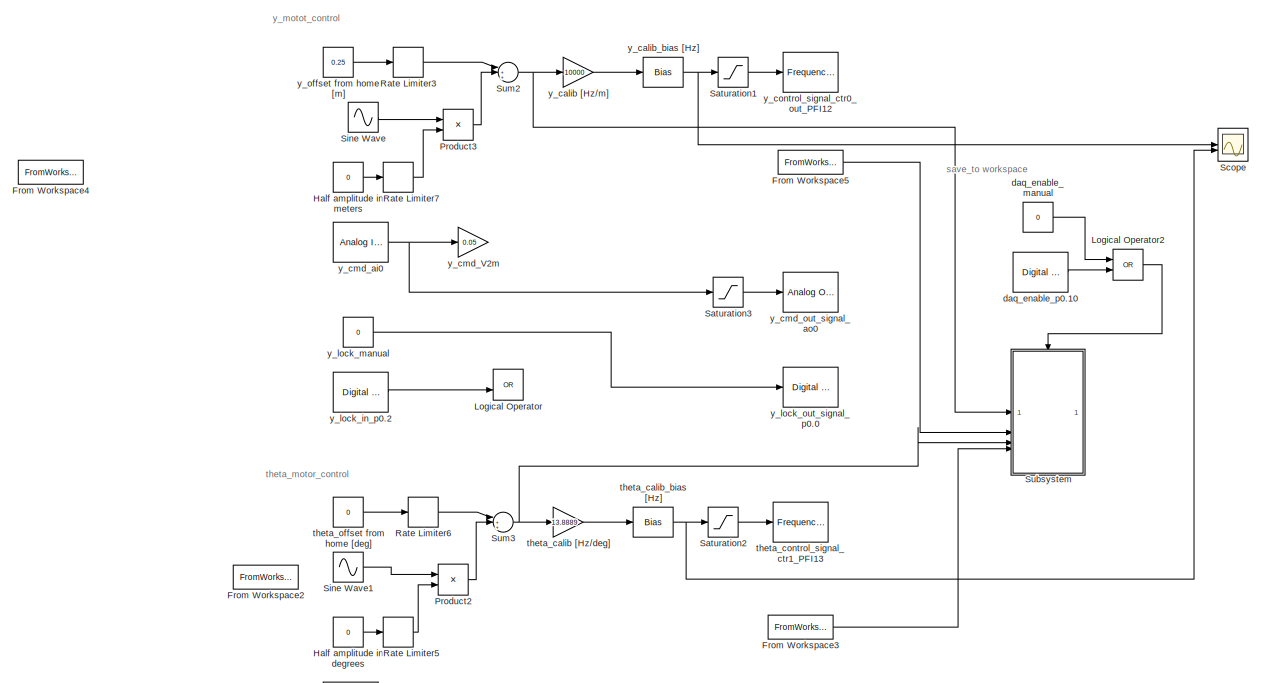
[diagram: root canvas - part 1/3, left side, full height]
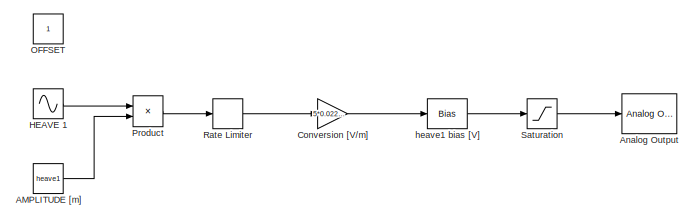
[diagram: root canvas - part 2/3, top right region]
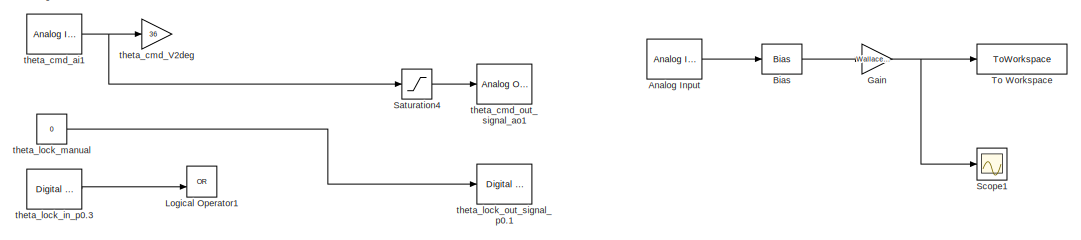
[diagram: root canvas - part 3/3, bottom center region]
MODEL slx_7e02fa98f4b2
KIND model
CONFIG AbsTol = auto
CONFIG EnableMultiTasking = off
CONFIG FixedStep = 0.0002
CONFIG MaxStep = auto
CONFIG MinStep = auto
CONFIG RelTol = 1e-3
CONFIG SampleTimeConstraint = Unconstrained
CONFIG SolverName = FixedStepAuto
CONFIG StartTime = 0.0
CONFIG StopTime = inf
BLOCK [Constant] AMPLITUDE [m]
  Value = heave1
BLOCK [Reference] Analog Input  REF=sldrtlib/Analog Input
  AttributesFormatString = National Instruments\nPCIe-6353 [auto]
  SourceBlock = sldrtlib/Analog Input
  SourceType = Simulink Desktop Real-Time Analog Input
BLOCK [Reference] Analog Output  REF=sldrtlib/Analog Output
  AttributesFormatString = National Instruments\nPCIe-6353 [auto]
  SourceBlock = sldrtlib/Analog Output
  SourceType = Simulink Desktop Real-Time Analog Output
BLOCK [Bias] Bias
  Bias = -bias_forces
  SaturateOnIntegerOverflow = off
BLOCK [Gain] Conversion [V//m]
  Gain = 5*0.022222
BLOCK [FromWorkspace] From Workspace2
  Commented = on
  Interpolate = off
  OutputAfterFinalValue = Cyclic repetition
  SampleTime = 0.001
  VariableName = thetaCmd
BLOCK [FromWorkspace] From Workspace3
  Commented = on
  Interpolate = off
  OutputAfterFinalValue = Cyclic repetition
  SampleTime = 0.001
  VariableName = thetaRef
BLOCK [FromWorkspace] From Workspace4
  Commented = on
  Interpolate = off
  OutputAfterFinalValue = Cyclic repetition
  SampleTime = 0.001
  VariableName = yCmd
BLOCK [FromWorkspace] From Workspace5
  Commented = on
  Interpolate = off
  OutputAfterFinalValue = Cyclic repetition
  SampleTime = 0.001
  VariableName = yRef
BLOCK [Gain] Gain
  Gain = Wallace_cal_transpose
  Multiplication = Matrix(u*K)
BLOCK [Sin] HEAVE 1
  Frequency = freq
  Phase = phase + phi
  SampleTime = 0
BLOCK [Constant] Half amplitude in degrees
  Value = 0
BLOCK [Constant] Half amplitude in meters
  Value = 0
BLOCK [Logic] Logical Operator
  AllPortsSameDT = off
  Commented = on
  Operator = OR
  OutDataTypeStr = boolean
BLOCK [Logic] Logical Operator1
  AllPortsSameDT = off
  Commented = on
  Operator = OR
  OutDataTypeStr = boolean
BLOCK [Logic] Logical Operator2
  AllPortsSameDT = off
  Operator = OR
  OutDataTypeStr = boolean
BLOCK [Constant] OFFSET
BLOCK [Product] Product
BLOCK [Product] Product2
BLOCK [Product] Product3
BLOCK [RateLimiter] Rate Limiter
  SampleTimeMode = inherited
BLOCK [RateLimiter] Rate Limiter3
  FallingSlewLimit = -0.04
  RisingSlewLimit = 0.04
  SampleTimeMode = inherited
BLOCK [RateLimiter] Rate Limiter5
  FallingSlewLimit = -10
  RisingSlewLimit = 10
  SampleTimeMode = inherited
BLOCK [RateLimiter] Rate Limiter6
  FallingSlewLimit = -15
  RisingSlewLimit = 15
  SampleTimeMode = inherited
BLOCK [RateLimiter] Rate Limiter7
  FallingSlewLimit = -0.01
  RisingSlewLimit = 0.01
  SampleTimeMode = inherited
BLOCK [Saturate] Saturation
  LowerLimit = -10
  UpperLimit = 10
BLOCK [Saturate] Saturation1
  LowerLimit = 5000
  UpperLimit = 10000
BLOCK [Saturate] Saturation2
  LowerLimit = 5000
  UpperLimit = 9200
BLOCK [Saturate] Saturation3
  Commented = on
  LowerLimit = -10
  UpperLimit = 10
BLOCK [Saturate] Saturation4
  Commented = on
  LowerLimit = -10
  UpperLimit = 10
BLOCK [Scope] Scope
  Floating = off
  NumInputPorts = 2
  ScopeSpecificationString = Simulink.scopes.TimeScopeBlockCfg('CurrentConfiguration', extmgr.ConfigurationSet(extmgr.Configuration('Core','General UI',true),extmgr.Configuration('Core','Source UI',true),extmgr.Configuration('Sources','WiredSimulink',true),extmgr.Configuration('Visuals','Time Domain',true,'SerializedDisplays',{struct('MinYLimReal','4000','MaxYLimReal','10000','YLabelReal','','MinYLimMag','4000.00000','MaxYLim...<+1509ch>
BLOCK [Scope] Scope1
  Floating = off
  NumInputPorts = 1
  ScopeSpecificationString = Simulink.scopes.TimeScopeBlockCfg('CurrentConfiguration', extmgr.ConfigurationSet(extmgr.Configuration('Core','General UI',true),extmgr.Configuration('Core','Source UI',true),extmgr.Configuration('Sources','WiredSimulink',true,'DataLoggingVariableName','ScopeData1'),extmgr.Configuration('Visuals','Time Domain',true,'SerializedDisplays',{struct('MinYLimReal','-10.36906','MaxYLimReal','11.04568','YL...<+1701ch>
BLOCK [Sin] Sine Wave
  Frequency = 2*pi*0.65
  SampleTime = 0
BLOCK [Sin] Sine Wave1
  Frequency = 2*pi*0.65
  Phase = -pi/2
  SampleTime = 0
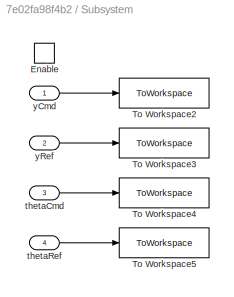
BLOCK [SubSystem] Subsystem
BLOCK [EnablePort] Subsystem/Enable
BLOCK [ToWorkspace] Subsystem/To Workspace2
  MaxDataPoints = inf
  SampleTime = 0.001
  Save2DSignal = 2-D array (concatenate along first dimension)
  VariableName = y_cmd
BLOCK [ToWorkspace] Subsystem/To Workspace3
  MaxDataPoints = inf
  SampleTime = 0.001
  Save2DSignal = 2-D array (concatenate along first dimension)
  VariableName = y_ref
BLOCK [ToWorkspace] Subsystem/To Workspace4
  MaxDataPoints = inf
  SampleTime = 0.001
  Save2DSignal = 2-D array (concatenate along first dimension)
  VariableName = theta_cmd
BLOCK [ToWorkspace] Subsystem/To Workspace5
  MaxDataPoints = inf
  SampleTime = 0.001
  Save2DSignal = 2-D array (concatenate along first dimension)
  VariableName = theta_ref
BLOCK [Inport] Subsystem/thetaCmd
  Port = 3
BLOCK [Inport] Subsystem/thetaRef
  Port = 4
BLOCK [Inport] Subsystem/yCmd
BLOCK [Inport] Subsystem/yRef
  Port = 2
BLOCK [Sum] Sum2
  Inputs = |+++
BLOCK [Sum] Sum3
  Inputs = |+++
BLOCK [ToWorkspace] To Workspace
  MaxDataPoints = 20000
  SampleTime = -1
  Save2DSignal = 2-D array (concatenate along first dimension)
  VariableName = forces
BLOCK [Constant] daq_enable_manual
  OutDataTypeStr = boolean
  Value = 0
BLOCK [Reference] daq_enable_p0.10  REF=sldrtlib/Digital Input
  AttributesFormatString = National Instruments\nPCIe-6323 [auto]
  SourceBlock = sldrtlib/Digital Input
  SourceType = Simulink Desktop Real-Time Digital Input
BLOCK [Bias] heave1 bias [V]
  Bias = bias_heave1
  SaturateOnIntegerOverflow = off
BLOCK [Gain] theta_calib [Hz//deg]
  Gain = 13.8889
BLOCK [Bias] theta_calib_bias [Hz]
  Bias = 5000
  NameLocation = top
  SaturateOnIntegerOverflow = off
BLOCK [Gain] theta_cmd_V2deg
  Commented = on
  Gain = 36
BLOCK [Reference] theta_cmd_ai1  REF=sldrtlib/Analog Input
  AttributesFormatString = National Instruments\nPCIe-6323 [auto]
  Commented = on
  SourceBlock = sldrtlib/Analog Input
  SourceType = Simulink Desktop Real-Time Analog Input
BLOCK [Reference] theta_cmd_out_signal_ao1  REF=sldrtlib/Analog Output
  AttributesFormatString = National Instruments\nPCIe-6323 [auto]
  Commented = on
  SourceBlock = sldrtlib/Analog Output
  SourceType = Simulink Desktop Real-Time Analog Output
BLOCK [Reference] theta_control_signal_ctr1_PFI13  REF=sldrtlib/Frequency Output
  AttributesFormatString = National Instruments\nPCIe-6323 [auto]
  Commented = on
  SourceBlock = sldrtlib/Frequency Output
  SourceType = Simulink Desktop Real-Time Frequency Output
BLOCK [Reference] theta_lock_in_p0.3  REF=sldrtlib/Digital Input
  AttributesFormatString = National Instruments\nPCIe-6323 [auto]
  Commented = on
  SourceBlock = sldrtlib/Digital Input
  SourceType = Simulink Desktop Real-Time Digital Input
BLOCK [Constant] theta_lock_manual
  OutDataTypeStr = boolean
  Value = 0
BLOCK [Reference] theta_lock_out_signal_p0.1  REF=sldrtlib/Digital Output
  AttributesFormatString = National Instruments\nPCIe-6323 [auto]
  Commented = on
  SourceBlock = sldrtlib/Digital Output
  SourceType = Simulink Desktop Real-Time Digital Output
BLOCK [Constant] theta_offset from home [deg]
  Value = 0
BLOCK [Gain] y_calib [Hz//m]
  Gain = 10000
BLOCK [Bias] y_calib_bias [Hz]
  Bias = 5000
  SaturateOnIntegerOverflow = off
BLOCK [Gain] y_cmd_V2m
  Commented = on
  Gain = 0.05
BLOCK [Reference] y_cmd_ai0  REF=sldrtlib/Analog Input
  AttributesFormatString = National Instruments\nPCIe-6323 [auto]
  Commented = on
  SourceBlock = sldrtlib/Analog Input
  SourceType = Simulink Desktop Real-Time Analog Input
BLOCK [Reference] y_cmd_out_signal_ao0  REF=sldrtlib/Analog Output
  AttributesFormatString = National Instruments\nPCIe-6323 [auto]
  Commented = on
  SourceBlock = sldrtlib/Analog Output
  SourceType = Simulink Desktop Real-Time Analog Output
BLOCK [Reference] y_control_signal_ctr0_out_PFI12  REF=sldrtlib/Frequency Output
  AttributesFormatString = National Instruments\nPCIe-6323 [auto]
  Commented = on
  SourceBlock = sldrtlib/Frequency Output
  SourceType = Simulink Desktop Real-Time Frequency Output
BLOCK [Reference] y_lock_in_p0.2  REF=sldrtlib/Digital Input
  AttributesFormatString = National Instruments\nPCIe-6323 [auto]
  Commented = on
  SourceBlock = sldrtlib/Digital Input
  SourceType = Simulink Desktop Real-Time Digital Input
BLOCK [Constant] y_lock_manual
  OutDataTypeStr = boolean
  Value = 0
BLOCK [Reference] y_lock_out_signal_p0.0  REF=sldrtlib/Digital Output
  AttributesFormatString = National Instruments\nPCIe-6323 [auto]
  Commented = on
  SourceBlock = sldrtlib/Digital Output
  SourceType = Simulink Desktop Real-Time Digital Output
BLOCK [Constant] y_offset from home [m]
  Value = 0.25
ANNOTATION (root): save_to workspace
ANNOTATION (root): theta_motor_control
ANNOTATION (root): y_motot_control
LINE AMPLITUDE [m]:1 -> Product:2
LINE Analog Input:1 -> Bias:1
LINE Bias:1 -> Gain:1
LINE Conversion [V//m]:1 -> heave1 bias [V]:1
LINE From Workspace3:1 -> Subsystem:4
LINE From Workspace5:1 -> Subsystem:2
NET Gain:1 -> Scope1:1, To Workspace:1
LINE HEAVE 1:1 -> Product:1
LINE Half amplitude in degrees:1 -> Rate Limiter5:1
LINE Half amplitude in meters:1 -> Rate Limiter7:1
LINE Logical Operator2:1 -> Subsystem:enable
LINE Product2:1 -> Sum3:2
LINE Product3:1 -> Sum2:2
LINE Product:1 -> Rate Limiter:1
LINE Rate Limiter3:1 -> Sum2:1
LINE Rate Limiter5:1 -> Product2:2
LINE Rate Limiter6:1 -> Sum3:1
LINE Rate Limiter7:1 -> Product3:2
LINE Rate Limiter:1 -> Conversion [V//m]:1
LINE Saturation1:1 -> y_control_signal_ctr0_out_PFI12:1
LINE Saturation2:1 -> theta_control_signal_ctr1_PFI13:1
LINE Saturation3:1 -> y_cmd_out_signal_ao0:1
LINE Saturation4:1 -> theta_cmd_out_signal_ao1:1
LINE Saturation:1 -> Analog Output:1
LINE Sine Wave1:1 -> Product2:1
LINE Sine Wave:1 -> Product3:1
LINE Subsystem/thetaCmd:1 -> Subsystem/To Workspace4:1
LINE Subsystem/thetaRef:1 -> Subsystem/To Workspace5:1
LINE Subsystem/yCmd:1 -> Subsystem/To Workspace2:1
LINE Subsystem/yRef:1 -> Subsystem/To Workspace3:1
NET Sum2:1 -> Subsystem:1, y_calib [Hz//m]:1
NET Sum3:1 -> Subsystem:3, theta_calib [Hz//deg]:1
LINE daq_enable_manual:1 -> Logical Operator2:1
LINE daq_enable_p0.10:1 -> Logical Operator2:2
LINE heave1 bias [V]:1 -> Saturation:1
LINE theta_calib [Hz//deg]:1 -> theta_calib_bias [Hz]:1
NET theta_calib_bias [Hz]:1 -> Saturation2:1, Scope:2
NET theta_cmd_ai1:1 -> Saturation4:1, theta_cmd_V2deg:1
LINE theta_lock_in_p0.3:1 -> Logical Operator1:2
LINE theta_lock_manual:1 -> theta_lock_out_signal_p0.1:1
LINE theta_offset from home [deg]:1 -> Rate Limiter6:1
LINE y_calib [Hz//m]:1 -> y_calib_bias [Hz]:1
NET y_calib_bias [Hz]:1 -> Saturation1:1, Scope:1
NET y_cmd_ai0:1 -> Saturation3:1, y_cmd_V2m:1
LINE y_lock_in_p0.2:1 -> Logical Operator:2
LINE y_lock_manual:1 -> y_lock_out_signal_p0.0:1
LINE y_offset from home [m]:1 -> Rate Limiter3:1
note: NET lines group one-source signal fan-out (src -> all destinations, sorted); 1:1 wires keep LINE
